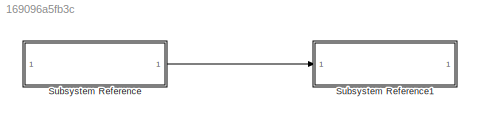
MODEL slx_169096a5fb3c
KIND model
CONFIG AbsTol = auto
CONFIG EnableMultiTasking = off
CONFIG FixedStep = auto
CONFIG MaxStep = auto
CONFIG MinStep = auto
CONFIG RelTol = 1e-3
CONFIG SampleTimeConstraint = Unconstrained
CONFIG SolverName = FixedStepAuto
CONFIG StartTime = 0.0
CONFIG StopTime = inf
BLOCK [SubSystem] Subsystem Reference
  ReferencedSubsystem = AudioTransmit
BLOCK [SubSystem] Subsystem Reference1
  ReferencedSubsystem = AudioRecive
LINE Subsystem Reference:1 -> Subsystem Reference1:1
